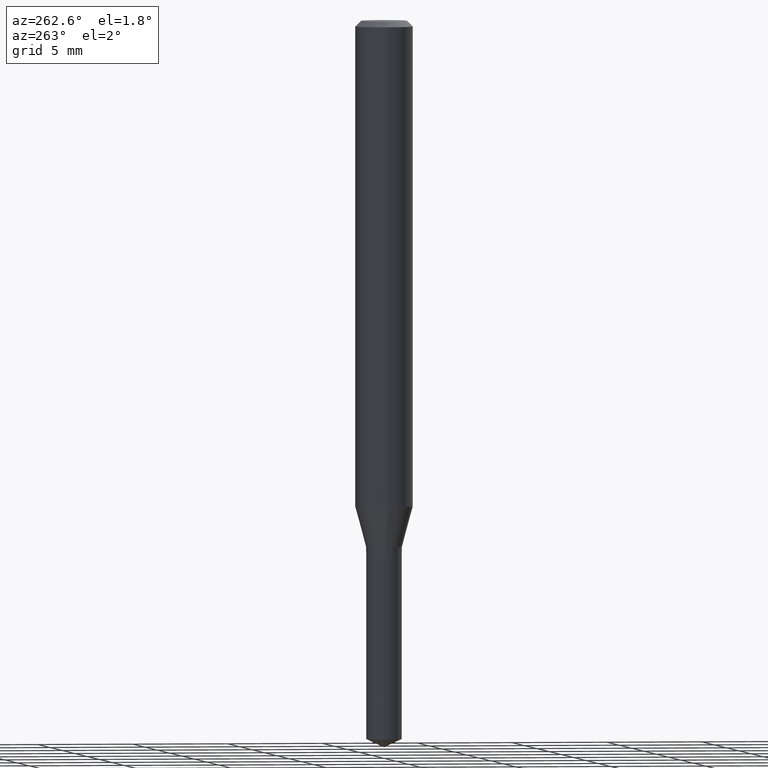
[diagram: clean part render]
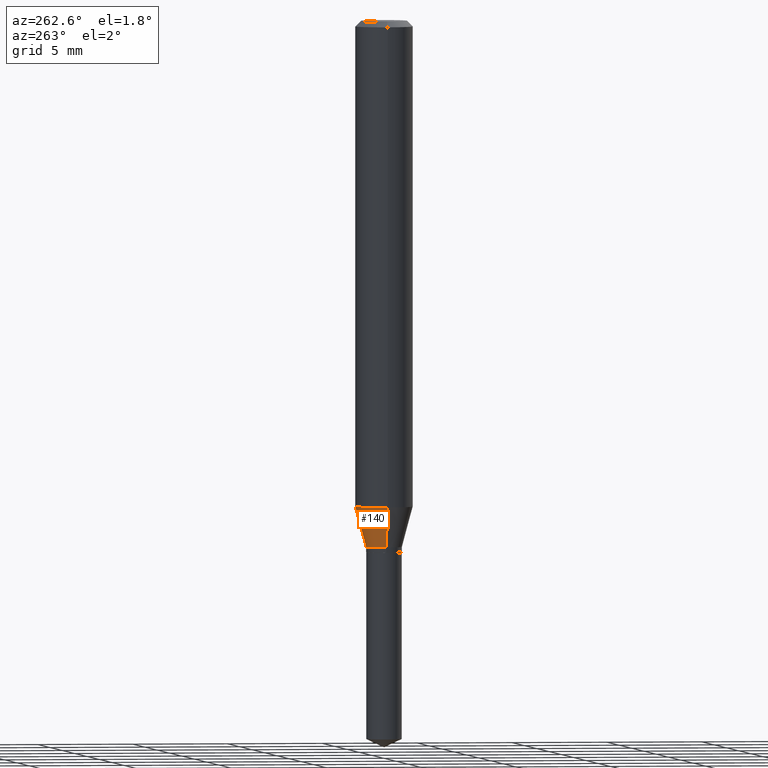
[diagram: same view with one face highlighted and labeled with its STEP entity id]
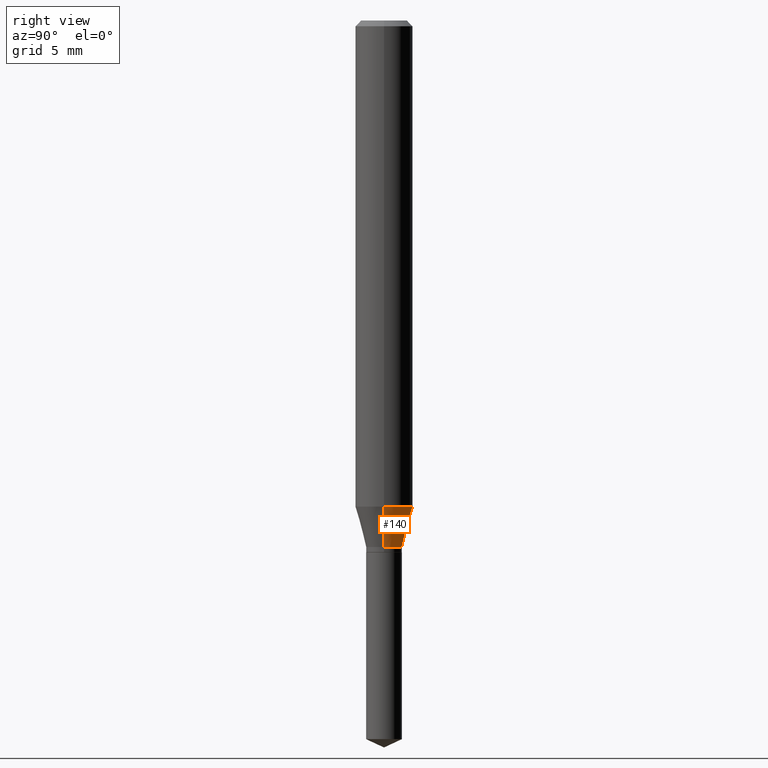
[diagram: same view with one face highlighted and labeled with its STEP entity id]
A machine part, auxiliary view. The second image highlights one B-rep face of the part: STEP entity #140.
A second angle (right view) of the same face is appended — the face is thin or edge-on in the first view.
In plain terms, the highlighted conical surface has half-angle 15 deg.
Its self-contained STEP definition (entity closure, byte-faithful):
#11 = CARTESIAN_POINT ( 'NONE',  ( 0.05905000000000011628, -3.905437893811055071E-15, -1.000461869531592107 ) ) ;
#14 = ORIENTED_EDGE ( 'NONE', *, *, #172, .T. ) ;
#35 = CARTESIAN_POINT ( 'NONE',  ( 0.03679999999999999938, -4.039993057175402909E-15, -1.083499999999999908 ) ) ;
#44 = EDGE_CURVE ( 'NONE', #297, #212, #127, .T. ) ;
#46 = VERTEX_POINT ( 'NONE', #11 ) ;
#47 = VECTOR ( 'NONE', #379, 39.37007874015748854 ) ;
#74 = CIRCLE ( 'NONE', #251, 0.03679999999999999938 ) ;
#76 = DIRECTION ( 'NONE',  ( 1.000000000000000000, -6.982962677686270655E-15, 0.000000000000000000 ) ) ;
#85 = CARTESIAN_POINT ( 'NONE',  ( -0.03679999999999999938, -3.539870580905757435E-15, -1.083499999999999908 ) ) ;
#86 = CARTESIAN_POINT ( 'NONE',  ( -0.03679999999999999938, -3.521540303876831253E-15, -1.083499999999999908 ) ) ;
#109 = DIRECTION ( 'NONE',  ( -2.445468806185136597E-29, 3.491481338843145583E-15, 1.000000000000000000 ) ) ;
#111 = CARTESIAN_POINT ( 'NONE',  ( 2.649665451501595207E-29, -3.783020030636548117E-15, -1.083499999999999908 ) ) ;
#117 = ORIENTED_EDGE ( 'NONE', *, *, #44, .T. ) ;
#126 = CARTESIAN_POINT ( 'NONE',  ( 2.649665451501595207E-29, -3.783020030636548117E-15, -1.083499999999999908 ) ) ;
#127 = LINE ( 'NONE', #86, #47 ) ;
#140 = ADVANCED_FACE ( 'NONE', ( #249 ), #359, .T. ) ;
#141 = AXIS2_PLACEMENT_3D ( 'NONE', #111, #109, #76 ) ;
#172 = EDGE_CURVE ( 'NONE', #398, #297, #74, .T. ) ;
#183 = DIRECTION ( 'NONE',  ( 0.2588190451025211836, 1.565188264969622559E-15, 0.9659258262890679791 ) ) ;
#212 = VERTEX_POINT ( 'NONE', #436 ) ;
#220 = ORIENTED_EDGE ( 'NONE', *, *, #489, .F. ) ;
#223 = VECTOR ( 'NONE', #183, 39.37007874015748854 ) ;
#241 = DIRECTION ( 'NONE',  ( 1.000000000000000000, -6.982962677686270655E-15, 0.000000000000000000 ) ) ;
#249 = FACE_OUTER_BOUND ( 'NONE', #463, .T. ) ;
#251 = AXIS2_PLACEMENT_3D ( 'NONE', #126, #442, #241 ) ;
#278 = CARTESIAN_POINT ( 'NONE',  ( 0.03679999999999999938, -4.039993057175402909E-15, -1.083499999999999908 ) ) ;
#289 = LINE ( 'NONE', #35, #223 ) ;
#297 = VERTEX_POINT ( 'NONE', #85 ) ;
#318 = ORIENTED_EDGE ( 'NONE', *, *, #410, .F. ) ;
#326 = DIRECTION ( 'NONE',  ( -2.445468806185136597E-29, 3.491481338843145583E-15, 1.000000000000000000 ) ) ;
#328 = CARTESIAN_POINT ( 'NONE',  ( 2.446598293717172506E-29, -3.493093947693679756E-15, -1.000461869531592107 ) ) ;
#359 = CONICAL_SURFACE ( 'NONE', #141, 0.03679999999999999938, 0.2617993877991499074 ) ;
#379 = DIRECTION ( 'NONE',  ( -0.2588190451025211836, 5.211531920934547886E-15, 0.9659258262890679791 ) ) ;
#393 = AXIS2_PLACEMENT_3D ( 'NONE', #328, #326, #400 ) ;
#398 = VERTEX_POINT ( 'NONE', #278 ) ;
#400 = DIRECTION ( 'NONE',  ( 1.000000000000000000, -6.982962677686266711E-15, 0.000000000000000000 ) ) ;
#410 = EDGE_CURVE ( 'NONE', #46, #212, #477, .T. ) ;
#436 = CARTESIAN_POINT ( 'NONE',  ( -0.05905000000000011628, -3.073518462227339869E-15, -1.000461869531592107 ) ) ;
#442 = DIRECTION ( 'NONE',  ( -2.445468806185136597E-29, 3.491481338843145583E-15, 1.000000000000000000 ) ) ;
#463 = EDGE_LOOP ( 'NONE', ( #14, #117, #318, #220 ) ) ;
#477 = CIRCLE ( 'NONE', #393, 0.05905000000000011628 ) ;
#489 = EDGE_CURVE ( 'NONE', #398, #46, #289, .T. ) ;